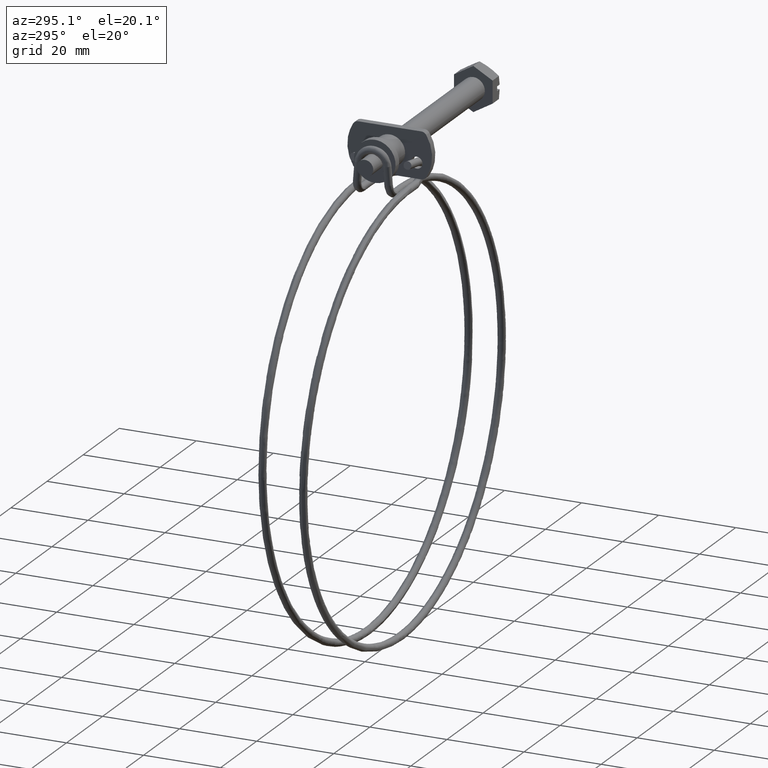
[diagram: clean part render]
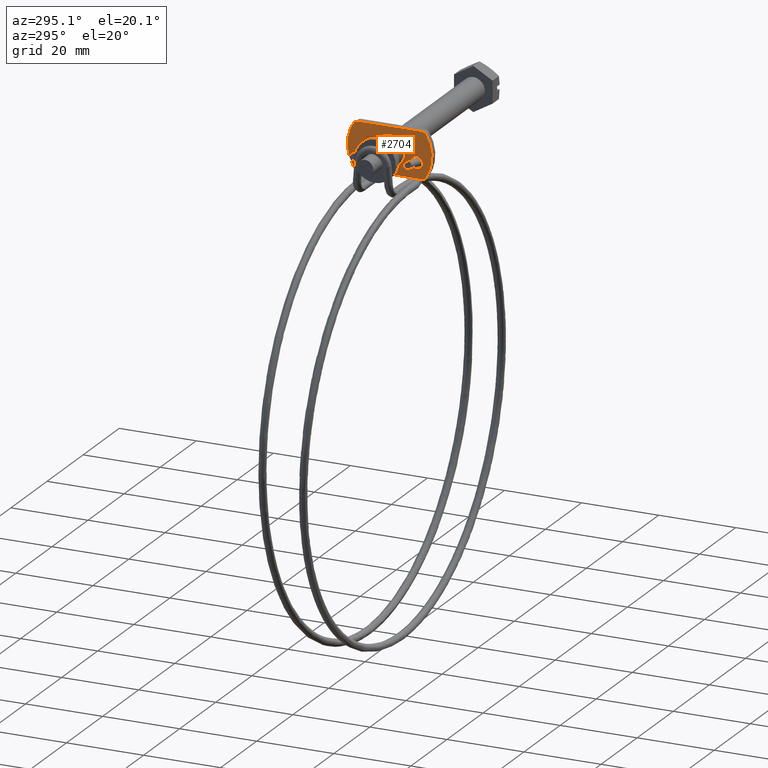
[diagram: same view with one face highlighted and labeled with its STEP entity id]
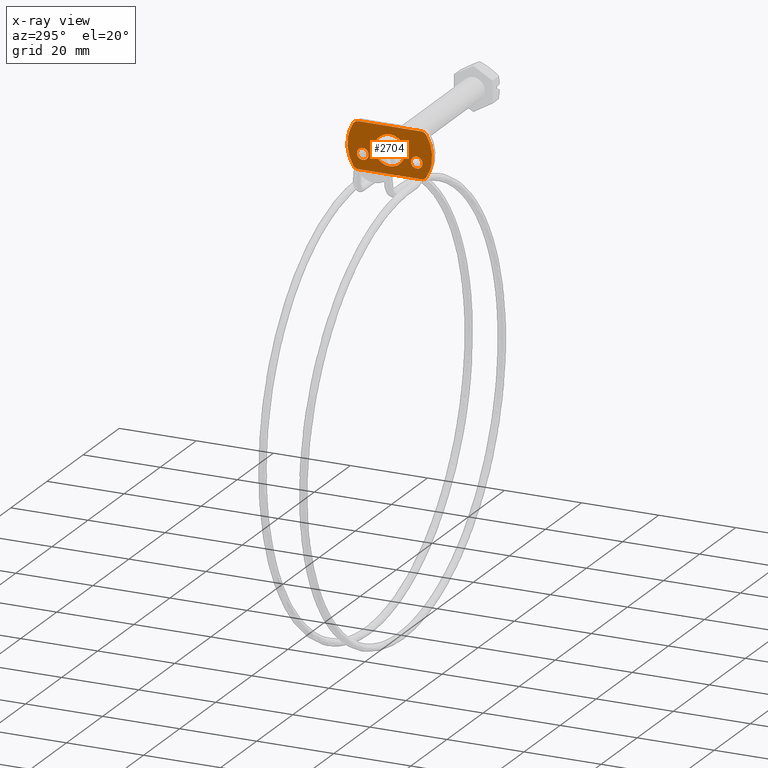
[diagram: x-ray of the same camera — body ghosted, the highlighted face saturated]
A machine part, auxiliary view. The second image highlights one B-rep face of the part: STEP entity #2704.
The next image is the same camera in x-ray: the body ghosted, the highlighted face saturated — about 0% of this face is hidden behind the body in this view.
In plain terms, the highlighted face is a freeform B-spline surface patch.
Its self-contained STEP definition (entity closure, byte-faithful):
#1724=CARTESIAN_POINT('',(-46.299999999999997,3.972038105414846,0.472136938962027));
#1725=VERTEX_POINT('',#1724);
#1731=CARTESIAN_POINT('',(-46.299999999999997,0.0,-4.0));
#1732=VERTEX_POINT('',#1731);
#1733=CARTESIAN_POINT('',(-46.299999999999997,3.972038105414847,0.472136938962027));
#1734=CARTESIAN_POINT('',(-46.300000000000004,4.0,0.236896478946175));
#1735=CARTESIAN_POINT('',(-46.299999999999997,4.0,0.0));
#1736=CARTESIAN_POINT('',(-46.300000000000004,4.000000000000000,-4.000000000000000));
#1737=CARTESIAN_POINT('',(-46.299999999999997,0.0,-4.0));
#1745=(BOUNDED_CURVE()B_SPLINE_CURVE(2,(#1733,#1734,#1735,#1736,#1737),.UNSPECIFIED.,.F.,.U.)B_SPLINE_CURVE_WITH_KNOTS((3,2,3),(0.229562473487137,0.250000000000000,0.500000000000000),.UNSPECIFIED.)CURVE()GEOMETRIC_REPRESENTATION_ITEM()RATIONAL_B_SPLINE_CURVE((0.956026754132011,0.976055948300250,1.0,0.707106781186548,1.0))REPRESENTATION_ITEM(''));
#1746=EDGE_CURVE('',#1725,#1732,#1745,.T.);
#1748=CARTESIAN_POINT('',(-46.299999999999997,-3.992539193686368,-0.244194158157400));
#1749=VERTEX_POINT('',#1748);
#1750=CARTESIAN_POINT('',(-46.299999999999997,0.0,-4.0));
#1751=CARTESIAN_POINT('',(-46.300000000000004,-3.762824267588843,-4.0));
#1752=CARTESIAN_POINT('',(-46.299999999999997,-3.992539193686368,-0.244194158157400));
#1760=(BOUNDED_CURVE()B_SPLINE_CURVE(2,(#1750,#1751,#1752),.UNSPECIFIED.,.F.,.U.)B_SPLINE_CURVE_WITH_KNOTS((3,3),(0.500000000000000,0.739332962240415),.UNSPECIFIED.)CURVE()GEOMETRIC_REPRESENTATION_ITEM()RATIONAL_B_SPLINE_CURVE((1.0,0.719603993284985,0.976072041669873))REPRESENTATION_ITEM(''));
#1761=EDGE_CURVE('',#1732,#1749,#1760,.T.);
#1835=CARTESIAN_POINT('',(-46.299999999999997,0.0,4.0));
#1836=VERTEX_POINT('',#1835);
#1837=CARTESIAN_POINT('',(-46.300000000000004,-3.992539193686369,-0.244194158157400));
#1838=CARTESIAN_POINT('',(-46.300000000000004,-4.000000000000001,-0.122211053212378));
#1839=CARTESIAN_POINT('',(-46.299999999999997,-4.0,0.0));
#1840=CARTESIAN_POINT('',(-46.300000000000004,-4.000000000000000,4.000000000000000));
#1841=CARTESIAN_POINT('',(-46.299999999999997,0.0,4.0));
#1849=(BOUNDED_CURVE()B_SPLINE_CURVE(2,(#1837,#1838,#1839,#1840,#1841),.UNSPECIFIED.,.F.,.U.)B_SPLINE_CURVE_WITH_KNOTS((3,2,3),(0.739332962240415,0.750000000000000,1.0),.UNSPECIFIED.)CURVE()GEOMETRIC_REPRESENTATION_ITEM()RATIONAL_B_SPLINE_CURVE((0.976072041669872,0.987502787901562,1.0,0.707106781186548,1.0))REPRESENTATION_ITEM(''));
#1850=EDGE_CURVE('',#1749,#1836,#1849,.T.);
#1852=CARTESIAN_POINT('',(-46.299999999999997,0.0,4.0));
#1853=CARTESIAN_POINT('',(-46.300000000000004,3.552698103202001,4.0));
#1854=CARTESIAN_POINT('',(-46.299999999999997,3.972038105414846,0.472136938962027));
#1862=(BOUNDED_CURVE()B_SPLINE_CURVE(2,(#1852,#1853,#1854),.UNSPECIFIED.,.F.,.U.)B_SPLINE_CURVE_WITH_KNOTS((3,3),(0.0,0.229562473487138),.UNSPECIFIED.)CURVE()GEOMETRIC_REPRESENTATION_ITEM()RATIONAL_B_SPLINE_CURVE((1.0,0.731050832886298,0.956026754132012))REPRESENTATION_ITEM(''));
#1863=EDGE_CURVE('',#1836,#1725,#1862,.T.);
#2111=CARTESIAN_POINT('',(-46.300000000000011,-5.502797802392843,-2.091572809718776));
#2112=VERTEX_POINT('',#2111);
#2118=CARTESIAN_POINT('',(-46.299999999999997,-7.000000000000171,-3.500000000000000));
#2119=VERTEX_POINT('',#2118);
#2120=CARTESIAN_POINT('',(-46.299999999999997,-7.000000000000171,-3.500000000000000));
#2121=CARTESIAN_POINT('',(-46.300000000000004,-5.588940900428148,-3.500000000000000));
#2122=CARTESIAN_POINT('',(-46.300000000000011,-5.502797802392843,-2.091572809718776));
#2130=(BOUNDED_CURVE()B_SPLINE_CURVE(2,(#2120,#2121,#2122),.UNSPECIFIED.,.F.,.U.)B_SPLINE_CURVE_WITH_KNOTS((3,3),(0.500000000000000,0.739332962145971),.UNSPECIFIED.)CURVE()GEOMETRIC_REPRESENTATION_ITEM()RATIONAL_B_SPLINE_CURVE((1.0,0.719603993395634,0.976072041467460))REPRESENTATION_ITEM(''));
#2131=EDGE_CURVE('',#2119,#2112,#2130,.T.);
#2133=CARTESIAN_POINT('',(-46.299999999999997,-8.489514289422328,-1.822948646977201));
#2134=VERTEX_POINT('',#2133);
#2135=CARTESIAN_POINT('',(-46.300000000000018,-8.489514289422328,-1.822948646977201));
#2136=CARTESIAN_POINT('',(-46.300000000000011,-8.500000000000171,-1.911163819473504));
#2137=CARTESIAN_POINT('',(-46.299999999999997,-8.500000000000171,-2.0));
#2138=CARTESIAN_POINT('',(-46.300000000000004,-8.500000000000171,-3.499999999999999));
#2139=CARTESIAN_POINT('',(-46.299999999999997,-7.000000000000171,-3.500000000000000));
#2147=(BOUNDED_CURVE()B_SPLINE_CURVE(2,(#2135,#2136,#2137,#2138,#2139),.UNSPECIFIED.,.F.,.U.)B_SPLINE_CURVE_WITH_KNOTS((3,2,3),(0.229562473280174,0.250000000000000,0.500000000000000),.UNSPECIFIED.)CURVE()GEOMETRIC_REPRESENTATION_ITEM()RATIONAL_B_SPLINE_CURVE((0.956026753726355,0.976055948057777,1.0,0.707106781186548,1.0))REPRESENTATION_ITEM(''));
#2148=EDGE_CURVE('',#2134,#2119,#2147,.T.);
#2192=CARTESIAN_POINT('',(-46.299999999999997,-7.000000000000171,-0.500000000000000));
#2193=VERTEX_POINT('',#2192);
#2194=CARTESIAN_POINT('',(-46.299999999999997,-7.000000000000171,-0.500000000000000));
#2195=CARTESIAN_POINT('',(-46.300000000000011,-8.332261787057933,-0.500000000000000));
#2196=CARTESIAN_POINT('',(-46.300000000000004,-8.489514289422328,-1.822948646977202));
#2204=(BOUNDED_CURVE()B_SPLINE_CURVE(2,(#2194,#2195,#2196),.UNSPECIFIED.,.F.,.U.)B_SPLINE_CURVE_WITH_KNOTS((3,3),(0.0,0.229562473280174),.UNSPECIFIED.)CURVE()GEOMETRIC_REPRESENTATION_ITEM()RATIONAL_B_SPLINE_CURVE((1.0,0.731050833128771,0.956026753726355))REPRESENTATION_ITEM(''));
#2205=EDGE_CURVE('',#2193,#2134,#2204,.T.);
#2207=CARTESIAN_POINT('',(-46.300000000000011,-5.502797802392843,-2.091572809718776));
#2208=CARTESIAN_POINT('',(-46.300000000000011,-5.500000000000170,-2.045829145365541));
#2209=CARTESIAN_POINT('',(-46.299999999999997,-5.500000000000170,-2.0));
#2210=CARTESIAN_POINT('',(-46.300000000000004,-5.500000000000171,-0.500000000000000));
#2211=CARTESIAN_POINT('',(-46.299999999999997,-7.000000000000171,-0.500000000000000));
#2219=(BOUNDED_CURVE()B_SPLINE_CURVE(2,(#2207,#2208,#2209,#2210,#2211),.UNSPECIFIED.,.F.,.U.)B_SPLINE_CURVE_WITH_KNOTS((3,2,3),(0.739332962145970,0.750000000000000,1.0),.UNSPECIFIED.)CURVE()GEOMETRIC_REPRESENTATION_ITEM()RATIONAL_B_SPLINE_CURVE((0.976072041467460,0.987502787790913,1.0,0.707106781186548,1.0))REPRESENTATION_ITEM(''));
#2220=EDGE_CURVE('',#2112,#2193,#2219,.T.);
#2297=CARTESIAN_POINT('',(-46.300000000000011,8.497202197607326,-2.091572809718776));
#2298=VERTEX_POINT('',#2297);
#2304=CARTESIAN_POINT('',(-46.299999999999997,7.0,-3.500000000000000));
#2305=VERTEX_POINT('',#2304);
#2306=CARTESIAN_POINT('',(-46.299999999999997,7.0,-3.500000000000000));
#2307=CARTESIAN_POINT('',(-46.300000000000004,8.411059099572025,-3.500000000000000));
#2308=CARTESIAN_POINT('',(-46.300000000000011,8.497202197607326,-2.091572809718776));
#2316=(BOUNDED_CURVE()B_SPLINE_CURVE(2,(#2306,#2307,#2308),.UNSPECIFIED.,.F.,.U.)B_SPLINE_CURVE_WITH_KNOTS((3,3),(0.500000000000000,0.739332962145971),.UNSPECIFIED.)CURVE()GEOMETRIC_REPRESENTATION_ITEM()RATIONAL_B_SPLINE_CURVE((1.0,0.719603993395634,0.976072041467460))REPRESENTATION_ITEM(''));
#2317=EDGE_CURVE('',#2305,#2298,#2316,.T.);
#2319=CARTESIAN_POINT('',(-46.300000000000011,5.510485710577842,-1.822948646977202));
#2320=VERTEX_POINT('',#2319);
#2321=CARTESIAN_POINT('',(-46.300000000000011,5.510485710577842,-1.822948646977202));
#2322=CARTESIAN_POINT('',(-46.300000000000004,5.500000000000001,-1.911163819473504));
#2323=CARTESIAN_POINT('',(-46.299999999999997,5.500000000000000,-2.0));
#2324=CARTESIAN_POINT('',(-46.300000000000004,5.500000000000001,-3.499999999999999));
#2325=CARTESIAN_POINT('',(-46.299999999999997,7.0,-3.500000000000000));
#2333=(BOUNDED_CURVE()B_SPLINE_CURVE(2,(#2321,#2322,#2323,#2324,#2325),.UNSPECIFIED.,.F.,.U.)B_SPLINE_CURVE_WITH_KNOTS((3,2,3),(0.229562473280174,0.250000000000000,0.500000000000000),.UNSPECIFIED.)CURVE()GEOMETRIC_REPRESENTATION_ITEM()RATIONAL_B_SPLINE_CURVE((0.956026753726355,0.976055948057777,1.0,0.707106781186548,1.0))REPRESENTATION_ITEM(''));
#2334=EDGE_CURVE('',#2320,#2305,#2333,.T.);
#2378=CARTESIAN_POINT('',(-46.299999999999997,7.0,-0.500000000000000));
#2379=VERTEX_POINT('',#2378);
#2380=CARTESIAN_POINT('',(-46.299999999999997,7.0,-0.500000000000000));
#2381=CARTESIAN_POINT('',(-46.300000000000011,5.667738212942238,-0.500000000000000));
#2382=CARTESIAN_POINT('',(-46.300000000000011,5.510485710577842,-1.822948646977202));
#2390=(BOUNDED_CURVE()B_SPLINE_CURVE(2,(#2380,#2381,#2382),.UNSPECIFIED.,.F.,.U.)B_SPLINE_CURVE_WITH_KNOTS((3,3),(0.0,0.229562473280174),.UNSPECIFIED.)CURVE()GEOMETRIC_REPRESENTATION_ITEM()RATIONAL_B_SPLINE_CURVE((1.0,0.731050833128771,0.956026753726355))REPRESENTATION_ITEM(''));
#2391=EDGE_CURVE('',#2379,#2320,#2390,.T.);
#2393=CARTESIAN_POINT('',(-46.300000000000011,8.497202197607326,-2.091572809718776));
#2394=CARTESIAN_POINT('',(-46.300000000000011,8.499999999999998,-2.045829145365541));
#2395=CARTESIAN_POINT('',(-46.299999999999997,8.500000000000000,-2.0));
#2396=CARTESIAN_POINT('',(-46.300000000000004,8.500000000000002,-0.500000000000000));
#2397=CARTESIAN_POINT('',(-46.299999999999997,7.0,-0.500000000000000));
#2405=(BOUNDED_CURVE()B_SPLINE_CURVE(2,(#2393,#2394,#2395,#2396,#2397),.UNSPECIFIED.,.F.,.U.)B_SPLINE_CURVE_WITH_KNOTS((3,2,3),(0.739332962145970,0.750000000000000,1.0),.UNSPECIFIED.)CURVE()GEOMETRIC_REPRESENTATION_ITEM()RATIONAL_B_SPLINE_CURVE((0.976072041467460,0.987502787790913,1.0,0.707106781186548,1.0))REPRESENTATION_ITEM(''));
#2406=EDGE_CURVE('',#2298,#2379,#2405,.T.);
#2575=CARTESIAN_POINT('',(-46.299999999999997,-12.098901057259649,6.599399976741672));
#2576=CARTESIAN_POINT('',(-46.299999999999997,12.098901647345629,6.599399976741672));
#2577=CARTESIAN_POINT('',(-46.299999999999997,-12.098901057259649,-6.599400298606754));
#2578=CARTESIAN_POINT('',(-46.299999999999997,12.098901647345629,-6.599400298606754));
#2579=B_SPLINE_SURFACE_WITH_KNOTS('',1,1,((#2575,#2577),(#2576,#2578)),.UNSPECIFIED.,.F.,.F.,.U.,(2,2),(2,2),(0.0,24.197802704605280),(0.0,13.198800275348431),.UNSPECIFIED.);
#2580=CARTESIAN_POINT('',(-46.299999999999997,-8.211102835975872,6.0));
#2581=VERTEX_POINT('',#2580);
#2582=CARTESIAN_POINT('',(-46.299999999999997,8.211102835975812,6.0));
#2583=VERTEX_POINT('',#2582);
#2584=CARTESIAN_POINT('',(-46.299999999999997,-8.211102835975872,6.0));
#2585=CARTESIAN_POINT('',(-46.299999999999997,8.211102835975812,6.0));
#2586=QUASI_UNIFORM_CURVE('',1,(#2584,#2585),.UNSPECIFIED.,.F.,.U.);
#2587=EDGE_CURVE('',#2581,#2583,#2586,.T.);
#2588=ORIENTED_EDGE('',*,*,#2587,.T.);
#2589=CARTESIAN_POINT('',(-46.299999999999997,9.483650111758500,5.294118020761420));
#2590=VERTEX_POINT('',#2589);
#2591=CARTESIAN_POINT('',(-46.299999999999997,9.483650111758507,5.294118020761424));
#2592=CARTESIAN_POINT('',(-46.300000000000011,9.043152842296104,6.000000000000001));
#2593=CARTESIAN_POINT('',(-46.299999999999997,8.211102835975812,6.0));
#2601=(BOUNDED_CURVE()B_SPLINE_CURVE(2,(#2591,#2592,#2593),.UNSPECIFIED.,.F.,.U.)CURVE()GEOMETRIC_REPRESENTATION_ITEM()QUASI_UNIFORM_CURVE()RATIONAL_B_SPLINE_CURVE((1.0,0.874474703419416,1.0))REPRESENTATION_ITEM(''));
#2602=EDGE_CURVE('',#2590,#2583,#2601,.T.);
#2603=ORIENTED_EDGE('',*,*,#2602,.F.);
#2604=CARTESIAN_POINT('',(-46.299999999999997,9.483650111758500,-5.294118020761420));
#2605=VERTEX_POINT('',#2604);
#2606=CARTESIAN_POINT('',(-46.299999999999997,9.483650111758506,-5.294118020761426));
#2607=CARTESIAN_POINT('',(-46.300000000000004,12.787381614966209,-3.469447E-015));
#2608=CARTESIAN_POINT('',(-46.299999999999997,9.483650111758506,5.294118020761422));
#2616=(BOUNDED_CURVE()B_SPLINE_CURVE(2,(#2606,#2607,#2608),.UNSPECIFIED.,.F.,.U.)CURVE()GEOMETRIC_REPRESENTATION_ITEM()QUASI_UNIFORM_CURVE()RATIONAL_B_SPLINE_CURVE((1.0,0.848364850521798,1.0))REPRESENTATION_ITEM(''));
#2617=EDGE_CURVE('',#2605,#2590,#2616,.T.);
#2618=ORIENTED_EDGE('',*,*,#2617,.F.);
#2619=CARTESIAN_POINT('',(-46.299999999999997,8.211102835975812,-6.0));
#2620=VERTEX_POINT('',#2619);
#2621=CARTESIAN_POINT('',(-46.299999999999997,8.211102835975812,-6.0));
#2622=CARTESIAN_POINT('',(-46.300000000000004,9.043152842296104,-6.0));
#2623=CARTESIAN_POINT('',(-46.299999999999997,9.483650111758506,-5.294118020761425));
#2631=(BOUNDED_CURVE()B_SPLINE_CURVE(2,(#2621,#2622,#2623),.UNSPECIFIED.,.F.,.U.)CURVE()GEOMETRIC_REPRESENTATION_ITEM()QUASI_UNIFORM_CURVE()RATIONAL_B_SPLINE_CURVE((1.0,0.874474703419415,1.0))REPRESENTATION_ITEM(''));
#2632=EDGE_CURVE('',#2620,#2605,#2631,.T.);
#2633=ORIENTED_EDGE('',*,*,#2632,.F.);
#2634=CARTESIAN_POINT('',(-46.299999999999997,-8.211102835975872,-6.0));
#2635=VERTEX_POINT('',#2634);
#2636=CARTESIAN_POINT('',(-46.299999999999997,8.211102835975812,-6.0));
#2637=CARTESIAN_POINT('',(-46.299999999999997,-8.211102835975872,-6.0));
#2638=QUASI_UNIFORM_CURVE('',1,(#2636,#2637),.UNSPECIFIED.,.F.,.U.);
#2639=EDGE_CURVE('',#2620,#2635,#2638,.T.);
#2640=ORIENTED_EDGE('',*,*,#2639,.T.);
#2641=CARTESIAN_POINT('',(-46.299999999999997,-9.483650111758561,-5.294118020761420));
#2642=VERTEX_POINT('',#2641);
#2643=CARTESIAN_POINT('',(-46.299999999999997,-9.483650111758568,-5.294118020761424));
#2644=CARTESIAN_POINT('',(-46.300000000000011,-9.043152842296165,-6.000000000000001));
#2645=CARTESIAN_POINT('',(-46.299999999999997,-8.211102835975872,-6.0));
#2653=(BOUNDED_CURVE()B_SPLINE_CURVE(2,(#2643,#2644,#2645),.UNSPECIFIED.,.F.,.U.)CURVE()GEOMETRIC_REPRESENTATION_ITEM()QUASI_UNIFORM_CURVE()RATIONAL_B_SPLINE_CURVE((1.0,0.874474703419416,1.0))REPRESENTATION_ITEM(''));
#2654=EDGE_CURVE('',#2642,#2635,#2653,.T.);
#2655=ORIENTED_EDGE('',*,*,#2654,.F.);
#2656=CARTESIAN_POINT('',(-46.299999999999997,-9.483650111758561,5.294118020761420));
#2657=VERTEX_POINT('',#2656);
#2658=CARTESIAN_POINT('',(-46.299999999999997,-9.483650111758561,5.294118020761425));
#2659=CARTESIAN_POINT('',(-46.299999999999997,-12.787381614966266,8.673617E-016));
#2660=CARTESIAN_POINT('',(-46.299999999999997,-9.483650111758561,-5.294118020761424));
#2668=(BOUNDED_CURVE()B_SPLINE_CURVE(2,(#2658,#2659,#2660),.UNSPECIFIED.,.F.,.U.)CURVE()GEOMETRIC_REPRESENTATION_ITEM()QUASI_UNIFORM_CURVE()RATIONAL_B_SPLINE_CURVE((1.0,0.848364850521798,1.0))REPRESENTATION_ITEM(''));
#2669=EDGE_CURVE('',#2657,#2642,#2668,.T.);
#2670=ORIENTED_EDGE('',*,*,#2669,.F.);
#2671=CARTESIAN_POINT('',(-46.299999999999997,-8.211102835975872,6.0));
#2672=CARTESIAN_POINT('',(-46.300000000000004,-9.043152842296166,6.0));
#2673=CARTESIAN_POINT('',(-46.299999999999997,-9.483650111758568,5.294118020761424));
#2681=(BOUNDED_CURVE()B_SPLINE_CURVE(2,(#2671,#2672,#2673),.UNSPECIFIED.,.F.,.U.)CURVE()GEOMETRIC_REPRESENTATION_ITEM()QUASI_UNIFORM_CURVE()RATIONAL_B_SPLINE_CURVE((1.0,0.874474703419415,1.0))REPRESENTATION_ITEM(''));
#2682=EDGE_CURVE('',#2581,#2657,#2681,.T.);
#2683=ORIENTED_EDGE('',*,*,#2682,.F.);
#2684=EDGE_LOOP('',(#2588,#2603,#2618,#2633,#2640,#2655,#2670,#2683));
#2685=FACE_OUTER_BOUND('',#2684,.T.);
#2686=ORIENTED_EDGE('',*,*,#2317,.T.);
#2687=ORIENTED_EDGE('',*,*,#2406,.T.);
#2688=ORIENTED_EDGE('',*,*,#2391,.T.);
#2689=ORIENTED_EDGE('',*,*,#2334,.T.);
#2690=EDGE_LOOP('',(#2686,#2687,#2688,#2689));
#2691=FACE_BOUND('',#2690,.T.);
#2692=ORIENTED_EDGE('',*,*,#2131,.T.);
#2693=ORIENTED_EDGE('',*,*,#2220,.T.);
#2694=ORIENTED_EDGE('',*,*,#2205,.T.);
#2695=ORIENTED_EDGE('',*,*,#2148,.T.);
#2696=EDGE_LOOP('',(#2692,#2693,#2694,#2695));
#2697=FACE_BOUND('',#2696,.T.);
#2698=ORIENTED_EDGE('',*,*,#1761,.F.);
#2699=ORIENTED_EDGE('',*,*,#1746,.F.);
#2700=ORIENTED_EDGE('',*,*,#1863,.F.);
#2701=ORIENTED_EDGE('',*,*,#1850,.F.);
#2702=EDGE_LOOP('',(#2698,#2699,#2700,#2701));
#2703=FACE_BOUND('',#2702,.T.);
#2704=ADVANCED_FACE('',(#2685,#2691,#2697,#2703),#2579,.T.);